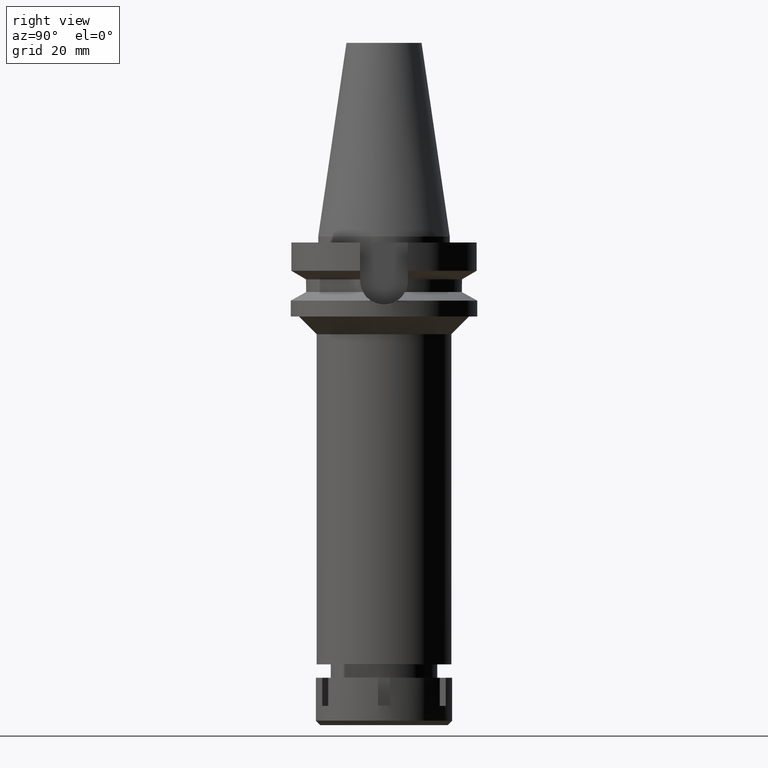
[diagram: clean part render]
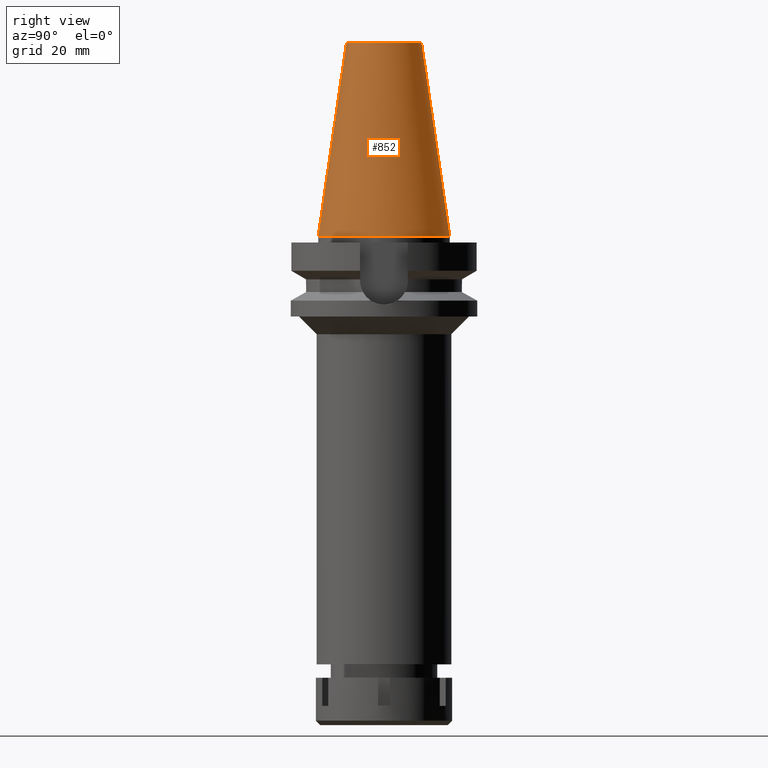
[diagram: same view with one face highlighted and labeled with its STEP entity id]
A machine part, right view. The second image highlights one B-rep face of the part: STEP entity #852.
In plain terms, the highlighted conical surface has half-angle 8.297 deg.
Its self-contained STEP definition (entity closure, byte-faithful):
#173 = ORIENTED_EDGE ( 'NONE', *, *, #696, .T. ) ;
#193 = CARTESIAN_POINT ( 'NONE',  ( 0.0000000000000000000, 1.625106302469000024E-14, 32.70000000000000284 ) ) ;
#327 = LINE ( 'NONE', #2855, #1915 ) ;
#380 = EDGE_CURVE ( 'NONE', #2551, #2821, #573, .T. ) ;
#421 = FACE_OUTER_BOUND ( 'NONE', #2882, .T. ) ;
#548 = DIRECTION ( 'NONE',  ( 0.0000000000000000000, 1.000000000000000000, 0.0000000000000000000 ) ) ;
#573 = CIRCLE ( 'NONE', #1398, 12.68766899429999917 ) ;
#669 = AXIS2_PLACEMENT_3D ( 'NONE', #193, #3538, #1819 ) ;
#696 = EDGE_CURVE ( 'NONE', #2821, #3602, #327, .T. ) ;
#730 = CARTESIAN_POINT ( 'NONE',  ( 0.0000000000000000000, 1.625106302469000024E-14, 2.842170943039999687E-14 ) ) ;
#790 = CIRCLE ( 'NONE', #1258, 22.22500000000000142 ) ;
#820 = ORIENTED_EDGE ( 'NONE', *, *, #1535, .F. ) ;
#852 = ADVANCED_FACE ( 'NONE', ( #421 ), #1968, .T. ) ;
#1258 = AXIS2_PLACEMENT_3D ( 'NONE', #730, #2446, #2168 ) ;
#1398 = AXIS2_PLACEMENT_3D ( 'NONE', #3076, #1982, #548 ) ;
#1535 = EDGE_CURVE ( 'NONE', #2381, #3602, #790, .T. ) ;
#1552 = CARTESIAN_POINT ( 'NONE',  ( 0.0000000000000000000, 12.68766899429999917, 65.40000000000000568 ) ) ;
#1711 = EDGE_CURVE ( 'NONE', #2551, #2381, #2366, .T. ) ;
#1721 = ORIENTED_EDGE ( 'NONE', *, *, #1711, .F. ) ;
#1743 = VECTOR ( 'NONE', #2142, 1000.000000000000114 ) ;
#1819 = DIRECTION ( 'NONE',  ( 0.0000000000000000000, -1.000000000000000000, 0.0000000000000000000 ) ) ;
#1824 = CARTESIAN_POINT ( 'NONE',  ( 0.0000000000000000000, 12.68766899429999917, 65.40000000000000568 ) ) ;
#1915 = VECTOR ( 'NONE', #2066, 1000.000000000000114 ) ;
#1968 = CONICAL_SURFACE ( 'NONE', #669, 17.45633449714999941, 0.1448099680379422438 ) ;
#1982 = DIRECTION ( 'NONE',  ( 0.0000000000000000000, 0.0000000000000000000, -1.000000000000000000 ) ) ;
#2066 = DIRECTION ( 'NONE',  ( 0.0000000000000000000, -0.1443043893539925626, -0.9895333461855498891 ) ) ;
#2137 = CARTESIAN_POINT ( 'NONE',  ( 0.0000000000000000000, -22.22500000000000142, 2.842170943039999687E-14 ) ) ;
#2142 = DIRECTION ( 'NONE',  ( 0.0000000000000000000, 0.1443043893539925626, -0.9895333461855498891 ) ) ;
#2168 = DIRECTION ( 'NONE',  ( 0.0000000000000000000, 1.000000000000000000, 0.0000000000000000000 ) ) ;
#2366 = LINE ( 'NONE', #1824, #1743 ) ;
#2381 = VERTEX_POINT ( 'NONE', #3125 ) ;
#2446 = DIRECTION ( 'NONE',  ( 0.0000000000000000000, 0.0000000000000000000, -1.000000000000000000 ) ) ;
#2462 = CARTESIAN_POINT ( 'NONE',  ( 0.0000000000000000000, -12.68766899429999917, 65.40000000000000568 ) ) ;
#2551 = VERTEX_POINT ( 'NONE', #1552 ) ;
#2821 = VERTEX_POINT ( 'NONE', #2462 ) ;
#2855 = CARTESIAN_POINT ( 'NONE',  ( 0.0000000000000000000, -12.68766899429999917, 65.40000000000000568 ) ) ;
#2882 = EDGE_LOOP ( 'NONE', ( #3395, #173, #820, #1721 ) ) ;
#3076 = CARTESIAN_POINT ( 'NONE',  ( 0.0000000000000000000, 1.625106302469000024E-14, 65.40000000000000568 ) ) ;
#3125 = CARTESIAN_POINT ( 'NONE',  ( 0.0000000000000000000, 22.22500000000000142, 8.526512829120999020E-14 ) ) ;
#3395 = ORIENTED_EDGE ( 'NONE', *, *, #380, .T. ) ;
#3538 = DIRECTION ( 'NONE',  ( 0.0000000000000000000, 0.0000000000000000000, -1.000000000000000000 ) ) ;
#3602 = VERTEX_POINT ( 'NONE', #2137 ) ;